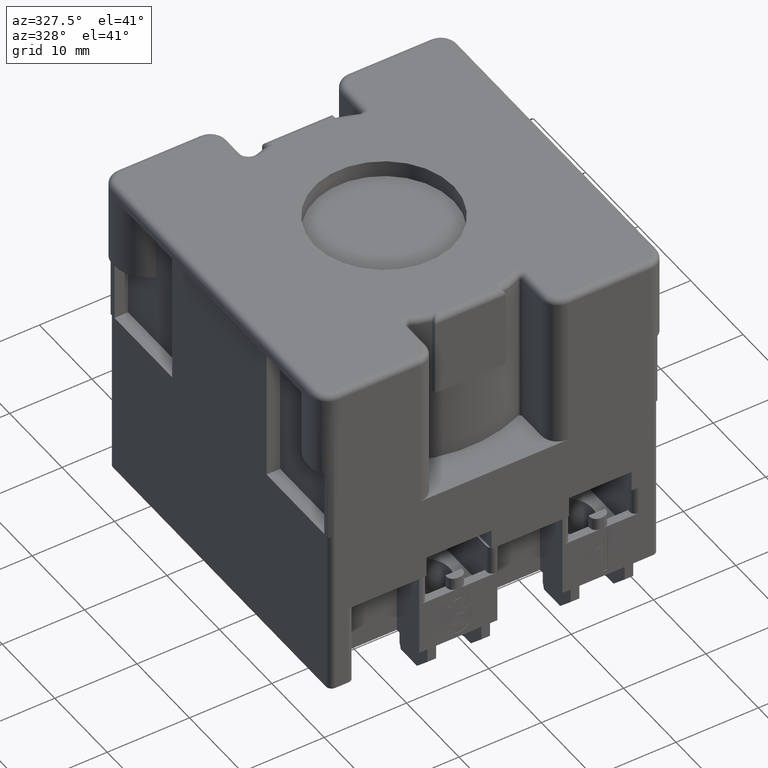
[diagram: clean part render]
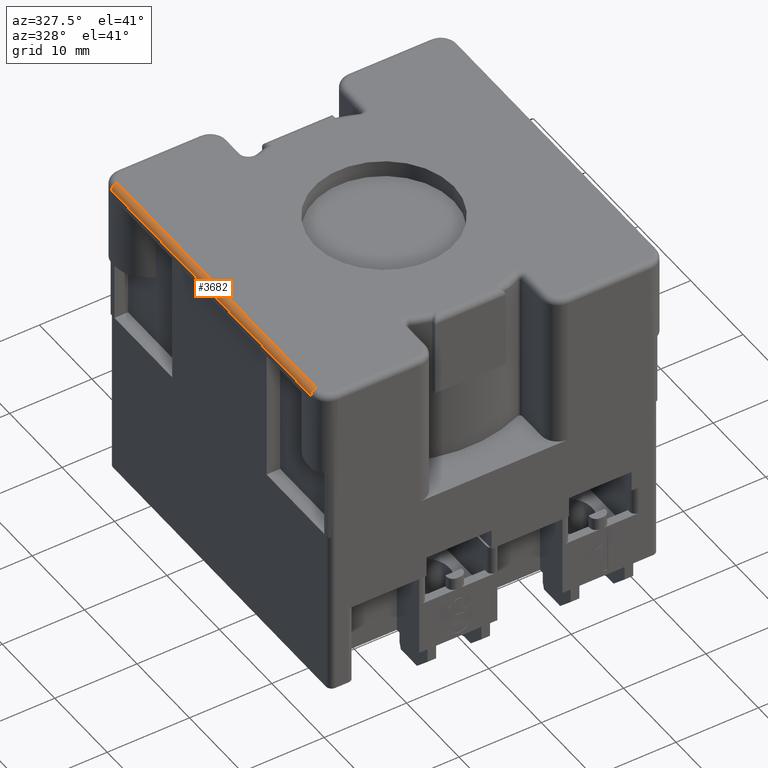
[diagram: same view with one face highlighted and labeled with its STEP entity id]
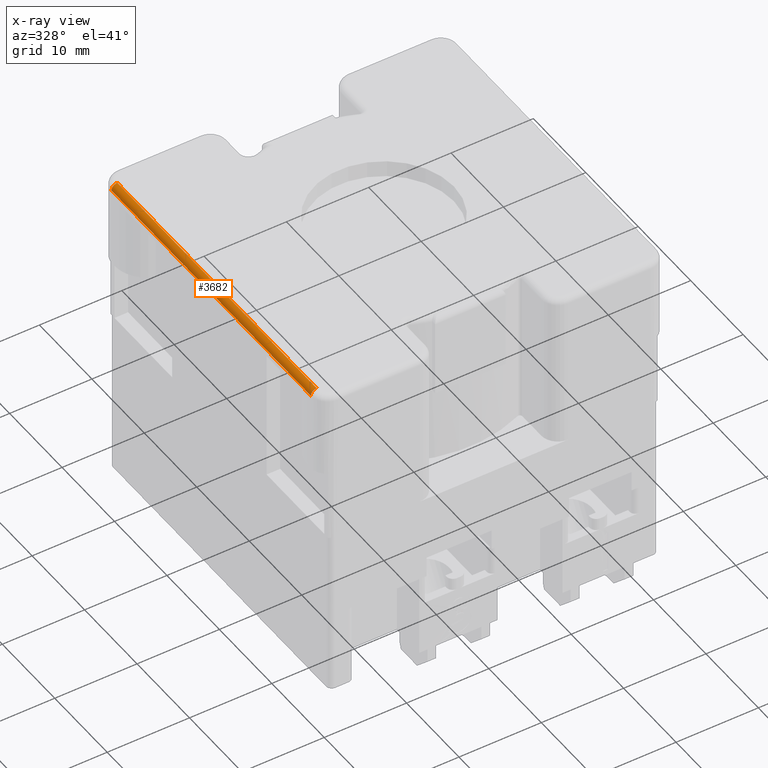
[diagram: x-ray of the same camera — body ghosted, the highlighted face saturated]
A machine part, auxiliary view. The second image highlights one B-rep face of the part: STEP entity #3682.
The next image is the same camera in x-ray: the body ghosted, the highlighted face saturated — about 0% of this face is hidden behind the body in this view.
In plain terms, the highlighted cylindrical surface (edge-blend (fillet) strip) has radius 0.7 mm, axis along (0, -1, 0).
Its self-contained STEP definition (entity closure, byte-faithful):
#457=CARTESIAN_POINT('',(-20.300000000000004,19.0,0.0));
#458=VERTEX_POINT('',#457);
#466=CARTESIAN_POINT('',(-20.300000000000004,-19.0,0.0));
#467=VERTEX_POINT('',#466);
#468=CARTESIAN_POINT('',(-20.300000000000004,19.0,0.0));
#469=DIRECTION('',(0.0,-1.0,0.0));
#470=VECTOR('',#469,38.0);
#471=LINE('',#468,#470);
#472=EDGE_CURVE('',#458,#467,#471,.T.);
#1838=CARTESIAN_POINT('',(-21.0,-19.0,-0.699999999999999));
#1839=VERTEX_POINT('',#1838);
#1846=CARTESIAN_POINT('',(-21.0,19.0,-0.699999999999999));
#1847=VERTEX_POINT('',#1846);
#1848=CARTESIAN_POINT('',(-21.0,-19.0,-0.699999999999999));
#1849=DIRECTION('',(0.0,1.0,0.0));
#1850=VECTOR('',#1849,38.0);
#1851=LINE('',#1848,#1850);
#1852=EDGE_CURVE('',#1839,#1847,#1851,.T.);
#3636=CARTESIAN_POINT('',(-20.300000000000004,19.0,-0.7));
#3637=DIRECTION('',(0.0,-1.0,0.0));
#3638=DIRECTION('',(0.0,0.0,-1.0));
#3639=AXIS2_PLACEMENT_3D('',#3636,#3637,#3638);
#3640=CIRCLE('',#3639,0.7);
#3641=EDGE_CURVE('',#458,#1847,#3640,.T.);
#3665=CARTESIAN_POINT('',(-20.300000000000004,-21.0,-0.7));
#3666=DIRECTION('',(0.0,-1.0,0.0));
#3667=DIRECTION('',(0.0,0.0,-1.0));
#3668=AXIS2_PLACEMENT_3D('',#3665,#3666,#3667);
#3669=CYLINDRICAL_SURFACE('',#3668,0.7);
#3670=ORIENTED_EDGE('',*,*,#3641,.T.);
#3671=ORIENTED_EDGE('',*,*,#1852,.F.);
#3672=CARTESIAN_POINT('',(-20.300000000000004,-19.0,-0.7));
#3673=DIRECTION('',(0.0,-1.0,0.0));
#3674=DIRECTION('',(0.0,0.0,-1.0));
#3675=AXIS2_PLACEMENT_3D('',#3672,#3673,#3674);
#3676=CIRCLE('',#3675,0.7);
#3677=EDGE_CURVE('',#467,#1839,#3676,.T.);
#3678=ORIENTED_EDGE('',*,*,#3677,.F.);
#3679=ORIENTED_EDGE('',*,*,#472,.F.);
#3680=EDGE_LOOP('',(#3670,#3671,#3678,#3679));
#3681=FACE_OUTER_BOUND('',#3680,.T.);
#3682=ADVANCED_FACE('',(#3681),#3669,.T.);